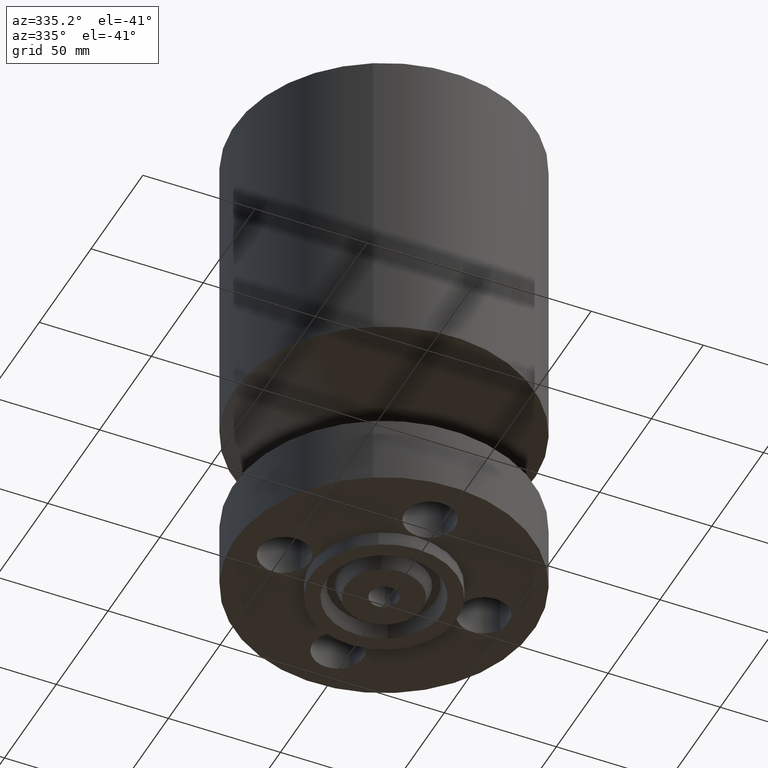
[diagram: clean part render]
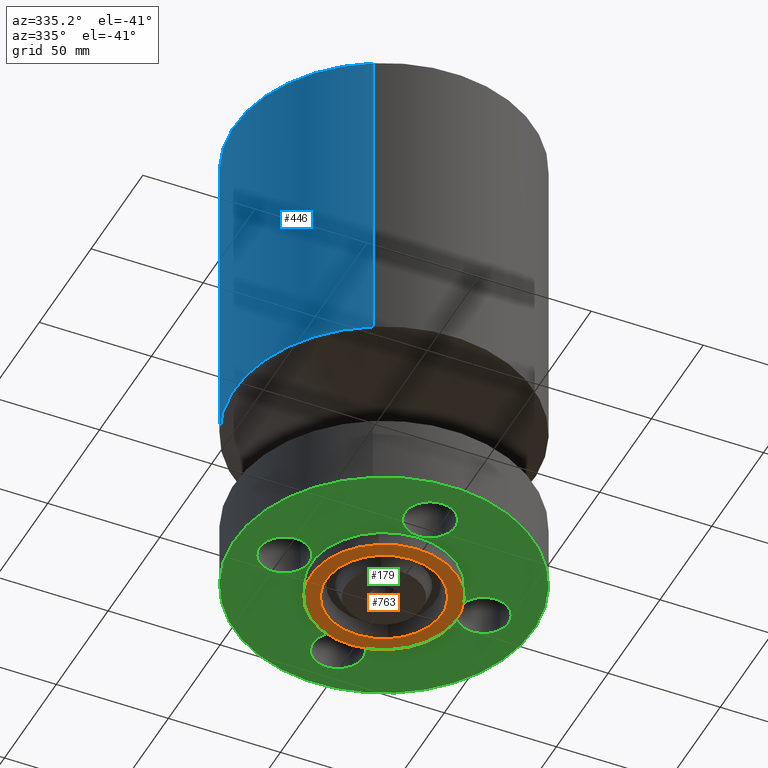
[diagram: same view with three faces highlighted in distinct colors, each labeled with its STEP entity id]
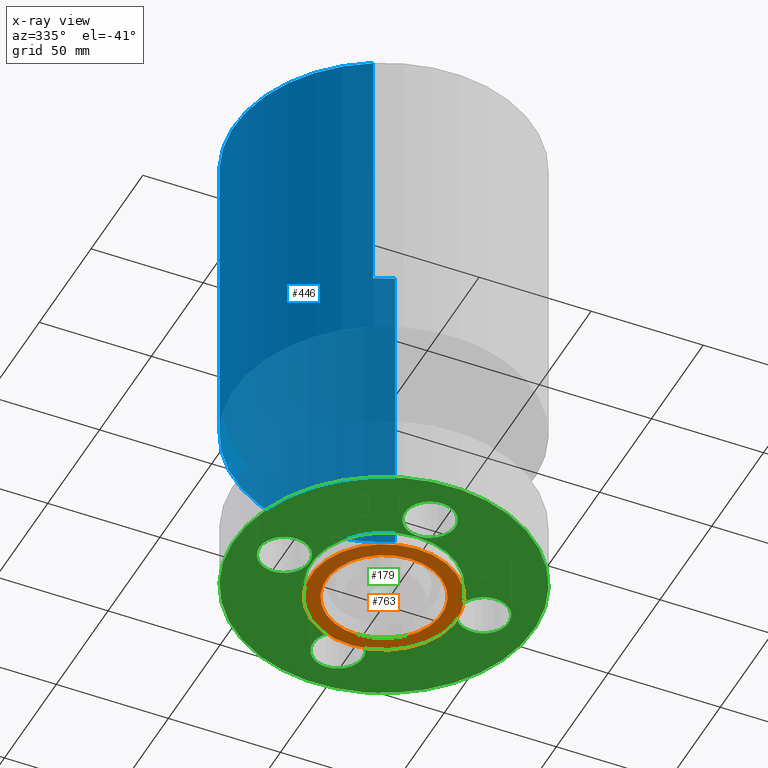
[diagram: x-ray of the same camera — body ghosted, the three highlighted faces saturated]
A machine part, auxiliary view with three faces highlighted in distinct colors.
The next image is the same camera in x-ray (body ghosted, the three faces saturated) — at least one of them is partly hidden behind the body in this view.
Their STEP definitions:

[orange] entity #763 — the highlighted planar face has unit normal (0, 0, -1).
#521=AXIS2_PLACEMENT_3D('Plane Axis2P3D',#518,#519,#520) ;
#712=AXIS2_PLACEMENT_3D('Circle Axis2P3D',#710,#711,$) ;
#731=AXIS2_PLACEMENT_3D('Circle Axis2P3D',#729,#730,$) ;
#743=AXIS2_PLACEMENT_3D('Circle Axis2P3D',#741,#742,$) ;
#752=AXIS2_PLACEMENT_3D('Circle Axis2P3D',#750,#751,$) ;
#518=CARTESIAN_POINT('Axis2P3D Location',(0.,0.250000000001,-0.250000000001)) ;
#707=CARTESIAN_POINT('Vertex',(-0.487096347224,-0.891623882884,-0.250000000001)) ;
#710=CARTESIAN_POINT('Axis2P3D Location',(0.,0.,-0.250000000001)) ;
#714=CARTESIAN_POINT('Vertex',(0.487096347224,0.891623882884,-0.250000000001)) ;
#729=CARTESIAN_POINT('Axis2P3D Location',(0.,0.,-0.250000000001)) ;
#741=CARTESIAN_POINT('Axis2P3D Location',(0.,0.,-0.250000000001)) ;
#745=CARTESIAN_POINT('Vertex',(-0.614383827724,-1.12462205307,-0.250000000001)) ;
#747=CARTESIAN_POINT('Vertex',(0.614383827724,1.12462205307,-0.250000000001)) ;
#750=CARTESIAN_POINT('Axis2P3D Location',(0.,0.,-0.250000000001)) ;
#519=DIRECTION('Axis2P3D Direction',(0.,0.,-0.0393700787402)) ;
#520=DIRECTION('Axis2P3D XDirection',(0.0393700787402,0.,0.)) ;
#711=DIRECTION('Axis2P3D Direction',(0.,0.,-0.0393700787402)) ;
#730=DIRECTION('Axis2P3D Direction',(0.,0.,-0.0393700787402)) ;
#742=DIRECTION('Axis2P3D Direction',(0.,0.,-0.0393700787402)) ;
#751=DIRECTION('Axis2P3D Direction',(0.,0.,-0.0393700787402)) ;
#756=ORIENTED_EDGE('',*,*,#749,.T.) ;
#757=ORIENTED_EDGE('',*,*,#754,.T.) ;
#760=ORIENTED_EDGE('',*,*,#733,.F.) ;
#761=ORIENTED_EDGE('',*,*,#716,.F.) ;
#762=FACE_BOUND('',#759,.T.) ;
#763=ADVANCED_FACE('PartBody',(#758,#762),#522,.T.) ;
#713=CIRCLE('generated circle',#712,1.016) ;
#732=CIRCLE('generated circle',#731,1.016) ;
#744=CIRCLE('generated circle',#743,1.28150000001) ;
#753=CIRCLE('generated circle',#752,1.28150000001) ;
#716=EDGE_CURVE('',#708,#715,#713,.T.) ;
#733=EDGE_CURVE('',#715,#708,#732,.T.) ;
#749=EDGE_CURVE('',#746,#748,#744,.T.) ;
#754=EDGE_CURVE('',#748,#746,#753,.T.) ;
#755=EDGE_LOOP('',(#756,#757)) ;
#759=EDGE_LOOP('',(#760,#761)) ;
#758=FACE_OUTER_BOUND('',#755,.T.) ;
#522=PLANE('',#521) ;
#708=VERTEX_POINT('',#707) ;
#715=VERTEX_POINT('',#714) ;
#746=VERTEX_POINT('',#745) ;
#748=VERTEX_POINT('',#747) ;

[blue] entity #446 — the highlighted cylindrical surface (partial cylindrical patch) has radius 66.675 mm, axis along (0, 0, -1).
#183=AXIS2_PLACEMENT_3D('Cylinder Axis2P3D',#180,#181,#182) ;
#399=AXIS2_PLACEMENT_3D('Circle Axis2P3D',#397,#398,$) ;
#437=AXIS2_PLACEMENT_3D('Circle Axis2P3D',#435,#436,$) ;
#180=CARTESIAN_POINT('Axis2P3D Location',(0.,0.,4.25000000002)) ;
#375=CARTESIAN_POINT('Vertex',(1.25849203884,2.30365422497,3.18304246302)) ;
#382=CARTESIAN_POINT('Vertex',(-1.25849203884,-2.30365422497,3.18304246302)) ;
#397=CARTESIAN_POINT('Axis2P3D Location',(0.,0.,3.18304246302)) ;
#409=CARTESIAN_POINT('Line Origine',(1.25849203884,2.30365422497,5.96652123153)) ;
#413=CARTESIAN_POINT('Vertex',(1.25849203884,2.30365422497,8.75000000004)) ;
#420=CARTESIAN_POINT('Vertex',(-1.25849203884,-2.30365422497,8.75000000004)) ;
#423=CARTESIAN_POINT('Line Origine',(-1.25849203884,-2.30365422497,5.96652123153)) ;
#435=CARTESIAN_POINT('Axis2P3D Location',(0.,0.,8.75000000004)) ;
#181=DIRECTION('Axis2P3D Direction',(0.,0.,-0.0393700787402)) ;
#182=DIRECTION('Axis2P3D XDirection',(-0.0188750212049,-0.0345504945626,0.)) ;
#398=DIRECTION('Axis2P3D Direction',(-0.,0.,0.0393700787402)) ;
#410=DIRECTION('Vector Direction',(0.,0.,-0.0393700787402)) ;
#424=DIRECTION('Vector Direction',(0.,0.,-0.0393700787402)) ;
#436=DIRECTION('Axis2P3D Direction',(0.,0.,-0.0393700787402)) ;
#411=VECTOR('Line Direction',#410,0.0393700787402) ;
#425=VECTOR('Line Direction',#424,0.0393700787402) ;
#441=ORIENTED_EDGE('',*,*,#401,.F.) ;
#442=ORIENTED_EDGE('',*,*,#427,.T.) ;
#443=ORIENTED_EDGE('',*,*,#439,.T.) ;
#444=ORIENTED_EDGE('',*,*,#415,.F.) ;
#446=ADVANCED_FACE('PartBody',(#445),#184,.T.) ;
#400=CIRCLE('generated circle',#399,2.62500000001) ;
#438=CIRCLE('generated circle',#437,2.62500000001) ;
#184=CYLINDRICAL_SURFACE('generated cylinder',#183,2.62500000001) ;
#401=EDGE_CURVE('',#383,#376,#400,.F.) ;
#415=EDGE_CURVE('',#376,#414,#412,.F.) ;
#427=EDGE_CURVE('',#383,#421,#426,.F.) ;
#439=EDGE_CURVE('',#421,#414,#438,.T.) ;
#440=EDGE_LOOP('',(#441,#442,#443,#444)) ;
#445=FACE_OUTER_BOUND('',#440,.T.) ;
#412=LINE('Line',#409,#411) ;
#426=LINE('Line',#423,#425) ;
#376=VERTEX_POINT('',#375) ;
#383=VERTEX_POINT('',#382) ;
#414=VERTEX_POINT('',#413) ;
#421=VERTEX_POINT('',#420) ;

[green] entity #179 — the highlighted planar face has unit normal (0, 0, -1).
#51=AXIS2_PLACEMENT_3D('Circle Axis2P3D',#49,#50,$) ;
#78=AXIS2_PLACEMENT_3D('Plane Axis2P3D',#75,#76,#77) ;
#82=AXIS2_PLACEMENT_3D('Circle Axis2P3D',#80,#81,$) ;
#91=AXIS2_PLACEMENT_3D('Circle Axis2P3D',#89,#90,$) ;
#100=AXIS2_PLACEMENT_3D('Circle Axis2P3D',#98,#99,$) ;
#109=AXIS2_PLACEMENT_3D('Circle Axis2P3D',#107,#108,$) ;
#118=AXIS2_PLACEMENT_3D('Circle Axis2P3D',#116,#117,$) ;
#127=AXIS2_PLACEMENT_3D('Circle Axis2P3D',#125,#126,$) ;
#136=AXIS2_PLACEMENT_3D('Circle Axis2P3D',#134,#135,$) ;
#145=AXIS2_PLACEMENT_3D('Circle Axis2P3D',#143,#144,$) ;
#154=AXIS2_PLACEMENT_3D('Circle Axis2P3D',#152,#153,$) ;
#163=AXIS2_PLACEMENT_3D('Circle Axis2P3D',#161,#162,$) ;
#172=AXIS2_PLACEMENT_3D('Circle Axis2P3D',#170,#171,$) ;
#46=CARTESIAN_POINT('Vertex',(2.13613632724,0.210947236987,2.2401153548E-016)) ;
#49=CARTESIAN_POINT('Axis2P3D Location',(1.75000000001,0.,0.)) ;
#53=CARTESIAN_POINT('Vertex',(1.36386367277,-0.210947236987,2.2401153548E-016)) ;
#75=CARTESIAN_POINT('Axis2P3D Location',(0.,0.798637156453,0.)) ;
#80=CARTESIAN_POINT('Axis2P3D Location',(0.,0.,0.)) ;
#84=CARTESIAN_POINT('Vertex',(-1.25849203884,-2.30365422497,0.)) ;
#86=CARTESIAN_POINT('Vertex',(1.25849203884,2.30365422497,0.)) ;
#89=CARTESIAN_POINT('Axis2P3D Location',(0.,0.,0.)) ;
#98=CARTESIAN_POINT('Axis2P3D Location',(1.75000000001,0.,0.)) ;
#107=CARTESIAN_POINT('Axis2P3D Location',(0.,0.,0.)) ;
#111=CARTESIAN_POINT('Vertex',(0.614383827724,1.12462205307,0.)) ;
#113=CARTESIAN_POINT('Vertex',(-0.614383827724,-1.12462205307,0.)) ;
#116=CARTESIAN_POINT('Axis2P3D Location',(0.,0.,0.)) ;
#125=CARTESIAN_POINT('Axis2P3D Location',(-1.39870617276E-016,-1.75000000001,0.)) ;
#129=CARTESIAN_POINT('Vertex',(0.210947236987,-2.13613632724,0.)) ;
#131=CARTESIAN_POINT('Vertex',(-0.210947236987,-1.36386367277,0.)) ;
#134=CARTESIAN_POINT('Axis2P3D Location',(-1.39870617276E-016,-1.75000000001,0.)) ;
#143=CARTESIAN_POINT('Axis2P3D Location',(-1.75000000001,-1.39870617276E-016,0.)) ;
#147=CARTESIAN_POINT('Vertex',(-2.13613632724,-0.210947236987,0.)) ;
#149=CARTESIAN_POINT('Vertex',(-1.36386367277,0.210947236987,0.)) ;
#152=CARTESIAN_POINT('Axis2P3D Location',(-1.75000000001,-1.39870617276E-016,0.)) ;
#161=CARTESIAN_POINT('Axis2P3D Location',(-5.59482469102E-016,1.75000000001,0.)) ;
#165=CARTESIAN_POINT('Vertex',(-0.210947236987,2.13613632724,0.)) ;
#167=CARTESIAN_POINT('Vertex',(0.210947236987,1.36386367277,0.)) ;
#170=CARTESIAN_POINT('Axis2P3D Location',(-2.44773580232E-016,1.75000000001,0.)) ;
#50=DIRECTION('Axis2P3D Direction',(0.,-0.,0.0393700787402)) ;
#76=DIRECTION('Axis2P3D Direction',(0.,0.,-0.0393700787402)) ;
#77=DIRECTION('Axis2P3D XDirection',(0.0393700787402,0.,0.)) ;
#81=DIRECTION('Axis2P3D Direction',(0.,0.,-0.0393700787402)) ;
#90=DIRECTION('Axis2P3D Direction',(0.,0.,-0.0393700787402)) ;
#99=DIRECTION('Axis2P3D Direction',(0.,0.,-0.0393700787402)) ;
#108=DIRECTION('Axis2P3D Direction',(0.,0.,-0.0393700787402)) ;
#117=DIRECTION('Axis2P3D Direction',(0.,0.,-0.0393700787402)) ;
#126=DIRECTION('Axis2P3D Direction',(0.,0.,-0.0393700787402)) ;
#135=DIRECTION('Axis2P3D Direction',(0.,0.,-0.0393700787402)) ;
#144=DIRECTION('Axis2P3D Direction',(0.,0.,-0.0393700787402)) ;
#153=DIRECTION('Axis2P3D Direction',(0.,0.,-0.0393700787402)) ;
#162=DIRECTION('Axis2P3D Direction',(0.,0.,-0.0393700787402)) ;
#171=DIRECTION('Axis2P3D Direction',(0.,0.,-0.0393700787402)) ;
#95=ORIENTED_EDGE('',*,*,#88,.T.) ;
#96=ORIENTED_EDGE('',*,*,#93,.T.) ;
#104=ORIENTED_EDGE('',*,*,#102,.F.) ;
#105=ORIENTED_EDGE('',*,*,#55,.F.) ;
#122=ORIENTED_EDGE('',*,*,#115,.F.) ;
#123=ORIENTED_EDGE('',*,*,#120,.F.) ;
#140=ORIENTED_EDGE('',*,*,#133,.F.) ;
#141=ORIENTED_EDGE('',*,*,#138,.F.) ;
#158=ORIENTED_EDGE('',*,*,#151,.F.) ;
#159=ORIENTED_EDGE('',*,*,#156,.F.) ;
#176=ORIENTED_EDGE('',*,*,#169,.F.) ;
#177=ORIENTED_EDGE('',*,*,#174,.F.) ;
#106=FACE_BOUND('',#103,.T.) ;
#124=FACE_BOUND('',#121,.T.) ;
#142=FACE_BOUND('',#139,.T.) ;
#160=FACE_BOUND('',#157,.T.) ;
#178=FACE_BOUND('',#175,.T.) ;
#179=ADVANCED_FACE('PartBody',(#97,#106,#124,#142,#160,#178),#79,.T.) ;
#52=CIRCLE('generated circle',#51,0.440000000002) ;
#83=CIRCLE('generated circle',#82,2.62500000001) ;
#92=CIRCLE('generated circle',#91,2.62500000001) ;
#101=CIRCLE('generated circle',#100,0.440000000002) ;
#110=CIRCLE('generated circle',#109,1.28150000001) ;
#119=CIRCLE('generated circle',#118,1.28150000001) ;
#128=CIRCLE('generated circle',#127,0.440000000002) ;
#137=CIRCLE('generated circle',#136,0.440000000002) ;
#146=CIRCLE('generated circle',#145,0.440000000002) ;
#155=CIRCLE('generated circle',#154,0.440000000002) ;
#164=CIRCLE('generated circle',#163,0.440000000002) ;
#173=CIRCLE('generated circle',#172,0.440000000002) ;
#55=EDGE_CURVE('',#47,#54,#52,.F.) ;
#88=EDGE_CURVE('',#85,#87,#83,.T.) ;
#93=EDGE_CURVE('',#87,#85,#92,.T.) ;
#102=EDGE_CURVE('',#54,#47,#101,.T.) ;
#115=EDGE_CURVE('',#112,#114,#110,.T.) ;
#120=EDGE_CURVE('',#114,#112,#119,.T.) ;
#133=EDGE_CURVE('',#130,#132,#128,.T.) ;
#138=EDGE_CURVE('',#132,#130,#137,.T.) ;
#151=EDGE_CURVE('',#148,#150,#146,.T.) ;
#156=EDGE_CURVE('',#150,#148,#155,.T.) ;
#169=EDGE_CURVE('',#166,#168,#164,.T.) ;
#174=EDGE_CURVE('',#168,#166,#173,.T.) ;
#94=EDGE_LOOP('',(#95,#96)) ;
#103=EDGE_LOOP('',(#104,#105)) ;
#121=EDGE_LOOP('',(#122,#123)) ;
#139=EDGE_LOOP('',(#140,#141)) ;
#157=EDGE_LOOP('',(#158,#159)) ;
#175=EDGE_LOOP('',(#176,#177)) ;
#97=FACE_OUTER_BOUND('',#94,.T.) ;
#79=PLANE('',#78) ;
#47=VERTEX_POINT('',#46) ;
#54=VERTEX_POINT('',#53) ;
#85=VERTEX_POINT('',#84) ;
#87=VERTEX_POINT('',#86) ;
#112=VERTEX_POINT('',#111) ;
#114=VERTEX_POINT('',#113) ;
#130=VERTEX_POINT('',#129) ;
#132=VERTEX_POINT('',#131) ;
#148=VERTEX_POINT('',#147) ;
#150=VERTEX_POINT('',#149) ;
#166=VERTEX_POINT('',#165) ;
#168=VERTEX_POINT('',#167) ;